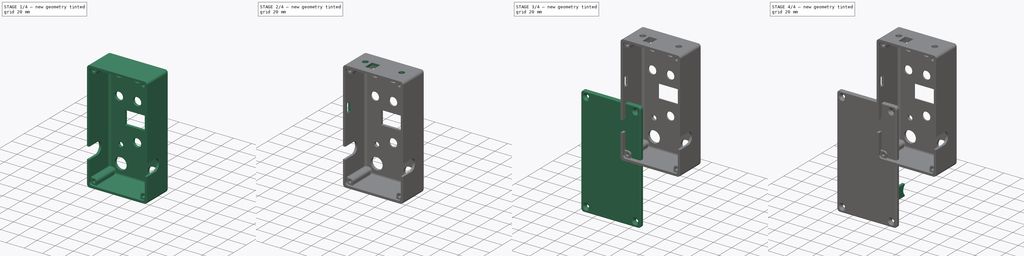
[diagram: build sequence overview — one tinted view per stage of 4, left to right]
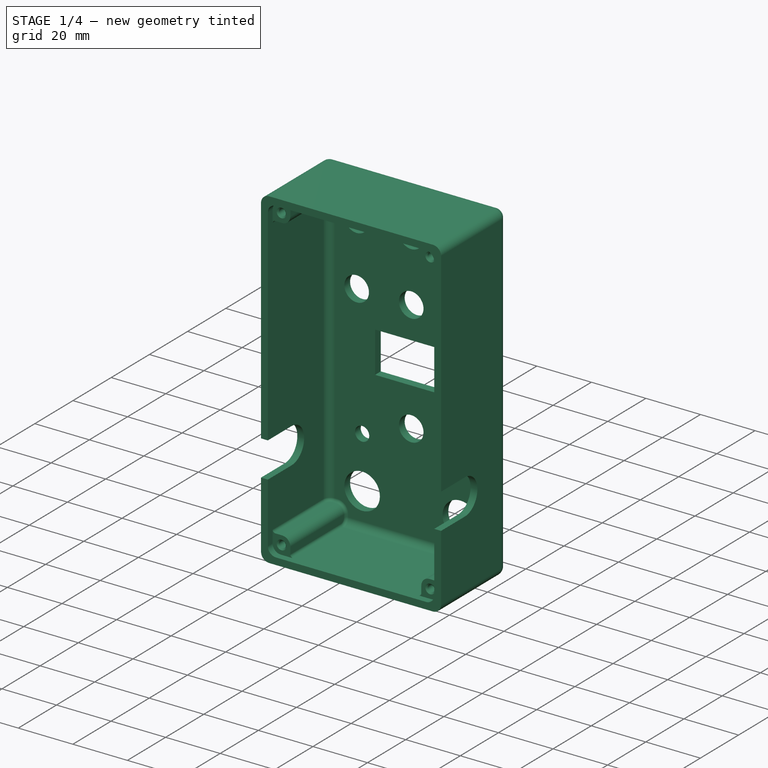
[diagram: stage 1 of 4 — iso view after this stage's code; geometry added in this stage tinted green]
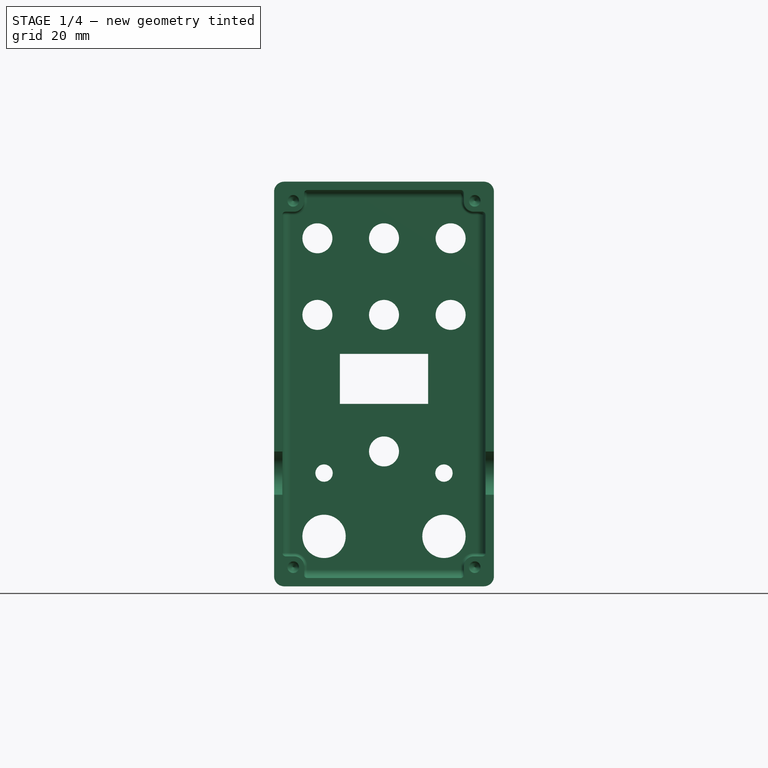
[diagram: stage 1 of 4 — front view after this stage's code; geometry added in this stage tinted green]
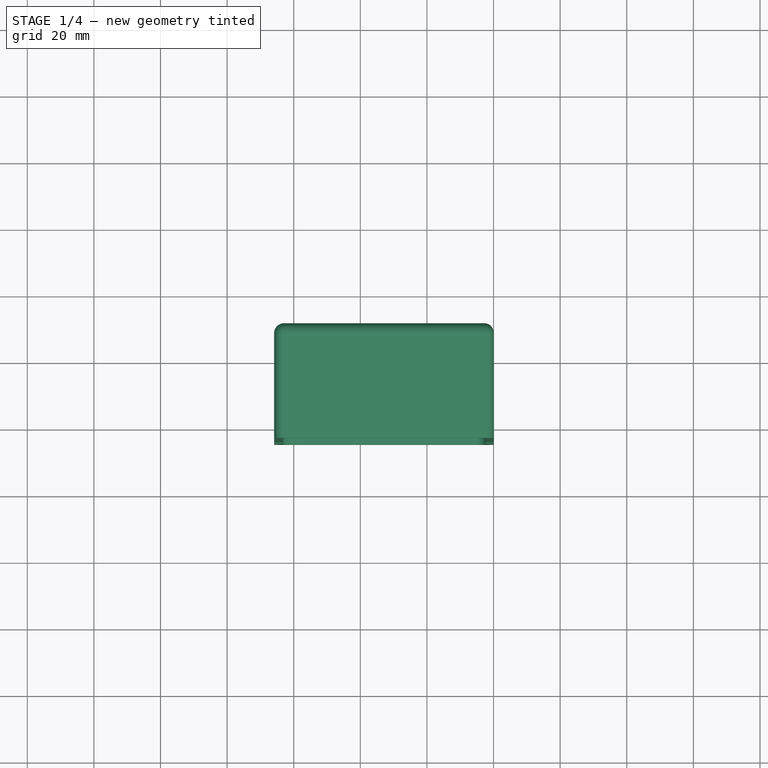
[diagram: stage 1 of 4 — top view after this stage's code; geometry added in this stage tinted green]
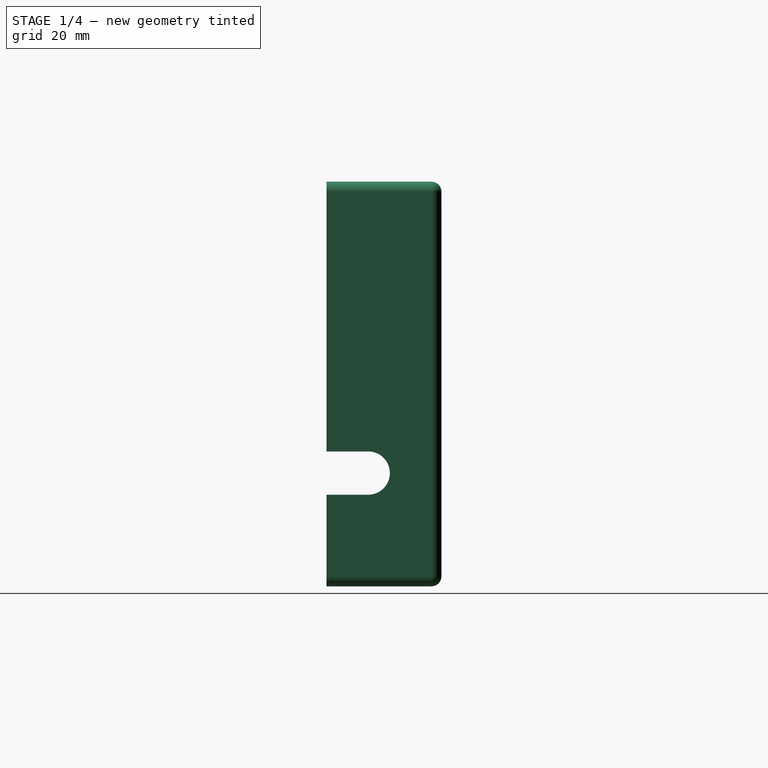
[diagram: stage 1 of 4 — right view after this stage's code; geometry added in this stage tinted green]
FCSTD DOCUMENT  (FreeCAD 2024.2R37240 (Git))
Label: daisy-enclosure
License: All rights reserved
LicenseURL: https://en.wikipedia.org/wiki/All_rights_reserved
objects: Sketcher::SketchObject×7, PartDesign::Pocket×6, Part::Feature×2, PartDesign::FeatureBase×2, PartDesign::Body×2, PartDesign::Chamfer×2, PartDesign::Pad×1, PartDesign::Plane×1, App::Part×1, PartDesign::Mirrored×1
note: 33 computed .brp shape members not serialized (recipe doc carries the construction recipe); baked Part::Feature solids carry a one-line shape summary decoded from their .brp

FEATURE [Part::Feature] Part__Feature  label="125B_Enclosure_Top"
  Placement = pos=(-12.892,11.25,63) rot=(0,0,1;3.14159rad)
  shape: bbox 66 x 34.5 x 121.5 mm, 99 faces (baked)
FEATURE [PartDesign::FeatureBase] BaseFeature
  BaseFeature = -> Part__Feature
  Suppressed = false
FEATURE [Sketcher::SketchObject] Sketch001  label="sketch-holes-front"
  AttachmentSupport = -> [BaseFeature]
  ExternalGeometry = -> [BaseFeature]
  FullyConstrained = true
  MapMode = 5
  Placement = pos=(0,30,0) rot=(0,0.707107,0.707107;3.14159rad)
  sketch-geometry (15):
    g0: Circle CenterX=12.8922 CenterY=41.5 CenterZ=0 NormalX=0 NormalY=0 NormalZ=1 AngleXU=0 Radius=4.5
    g1: Circle CenterX=12.8922 CenterY=18.5 CenterZ=0 NormalX=0 NormalY=0 NormalZ=1 AngleXU=0 Radius=4.5
    g2: Circle CenterX=-7.10776 CenterY=41.5 CenterZ=0 NormalX=0 NormalY=0 NormalZ=1 AngleXU=0 Radius=4.5
    g3: Circle CenterX=-7.10776 CenterY=18.5 CenterZ=0 NormalX=0 NormalY=0 NormalZ=1 AngleXU=0 Radius=4.5
    g4: Circle CenterX=32.8922 CenterY=41.5 CenterZ=0 NormalX=0 NormalY=0 NormalZ=1 AngleXU=0 Radius=4.5
    g5: Circle CenterX=32.8922 CenterY=18.5 CenterZ=0 NormalX=0 NormalY=0 NormalZ=1 AngleXU=0 Radius=4.5
    g6: LineSegment StartX=-0.357759 StartY=6.8 StartZ=0 EndX=-0.357759 EndY=-8.2 EndZ=0
    g7: LineSegment StartX=-0.357759 StartY=-8.2 StartZ=0 EndX=26.1422 EndY=-8.2 EndZ=0
    g8: LineSegment StartX=26.1422 StartY=-8.2 StartZ=0 EndX=26.1422 EndY=6.8 EndZ=0
    g9: LineSegment StartX=26.1422 StartY=6.8 StartZ=0 EndX=-0.357759 EndY=6.8 EndZ=0
    g10: Circle CenterX=12.8922 CenterY=-22.5 CenterZ=0 NormalX=0 NormalY=0 NormalZ=1 AngleXU=0 Radius=4.5
    g11: Circle CenterX=-5.10776 CenterY=-48 CenterZ=0 NormalX=0 NormalY=0 NormalZ=1 AngleXU=0 Radius=6.5
    g12: Circle CenterX=30.8922 CenterY=-48 CenterZ=0 NormalX=0 NormalY=0 NormalZ=1 AngleXU=0 Radius=6.5
    g13: Circle CenterX=-5.10776 CenterY=-29 CenterZ=0 NormalX=0 NormalY=0 NormalZ=1 AngleXU=0 Radius=2.6
    g14: Circle CenterX=30.8922 CenterY=-29 CenterZ=0 NormalX=0 NormalY=0 NormalZ=1 AngleXU=0 Radius=2.6
  constraints (45):
    c: Radius(g0) = 4.5
    c: Radius(g1) = 4.5
    c: Distance(g0,g-3) = 14
    c: Distance(g1,g-3) = 37
    c: Distance(g0,g-5) = 30
    c: Distance(g1,g-5) = 30
    c: Radius(g2) = 4.5
    c: Radius(g3) = 4.5
    c: Radius(g4) = 4.5
    c: Radius(g5) = 4.5
    c: Distance(g2,g-3) = 14
    c: Distance(g3,g-3) = 37
    c: DistanceX(g2,g0) = 20
    c: DistanceX(g3,g1) = 20
    c: Symmetric(g4,g2,g0)
    c: Symmetric(g5,g3,g1)
    c: Coincident(g6,g7)
    c: Coincident(g7,g8)
    c: Coincident(g8,g9)
    c: Coincident(g9,g6)
    c: Vertical(g6)
    c: Vertical(g8)
    c: Horizontal(g7)
    c: Horizontal(g9)
    c: Distance(g-3,g9) = 48.7
    c: Distance(g9,g7) = 15
    c: DistanceX(g9,g9) = 26.5
    c: Radius(g10) = 4.5
    c: Distance(g10,g-5) = 30
    c: Distance(g10,g-4) = 37.5
    c: Radius(g11) = 6.5
    c: Radius(g12) = 6.5
    c: Radius(g13) = 2.6
    c: Radius(g14) = 2.6
    c: Distance(g3,g-5) = 10
    c: Distance(g13,g-5) = 12
    c: Distance(g14,g-6) = 12
    c: Distance(g12,g-6) = 12
    c: Distance(g11,g-5) = 12
    c: Distance(g11,g-4) = 12
    c: Distance(g12,g-4) = 12
    c: Distance(g13,g-4) = 31
    c: Distance(g14,g-4) = 31
    c: Distance(g-5,g6) = 16.75
    c: Distance(g-6,g8) = 16.75
FEATURE [PartDesign::Pocket] Pocket  label="holes-front"
  BaseFeature = -> BaseFeature
  Direction = (0,-1,2e-16)
  Length = 5
  Length2 = 5
  Profile = -> Sketch001
  ReferenceAxis = -> Sketch001 [N_Axis]
  Refine = true
  Suppressed = false
  Type = 0
FEATURE [Sketcher::SketchObject] Sketch002  label="sketch-holes-side-jacks"
  AttachmentSupport = -> [Pocket]
  ExternalGeometry = -> [Pocket]
  FullyConstrained = true
  MapMode = 5
  Placement = pos=(-45.8922,0,5e-15) rot=(0.57735,-0.57735,-0.57735;2.0944rad)
  sketch-geometry (4):
    g0: ArcOfCircle CenterX=-8 CenterY=-29 CenterZ=0 NormalX=0 NormalY=0 NormalZ=1 AngleXU=0 Radius=6.5 StartAngle=1.5708 EndAngle=4.71239
    g1: LineSegment StartX=4.5 StartY=-22.5 StartZ=0 EndX=-8 EndY=-22.5 EndZ=0
    g2: LineSegment StartX=-8 StartY=-35.5 StartZ=0 EndX=4.5 EndY=-35.5 EndZ=0
    g3: LineSegment StartX=4.5 StartY=-35.5 StartZ=0 EndX=4.5 EndY=-22.5 EndZ=0
  constraints (14):
    c: Radius(g0) = 6.5
    c: Distance(g0,g-3) = 19
    c: Distance(g0,g-4) = 31
    c: Coincident(g2,g3)
    c: Coincident(g3,g1)
    c: Horizontal(g1)
    c: Horizontal(g2)
    c: Vertical(g3)
    c: PointOnObject(g1,g-5)
    c: Coincident(g0,g1)
    c: Coincident(g0,g2)
    c: Distance(g-7,g-4) = 3
    c: Vertical(g0,g0)
    c: Vertical(g0,g0)
FEATURE [PartDesign::Pocket] Pocket001  label="holes-side-jacks"
  BaseFeature = -> Pocket
  Direction = (1,0,0)
  Length = 5
  Length2 = 5
  Profile = -> Sketch002
  ReferenceAxis = -> Sketch002 [N_Axis]
  Refine = true
  Suppressed = false
  Type = 1
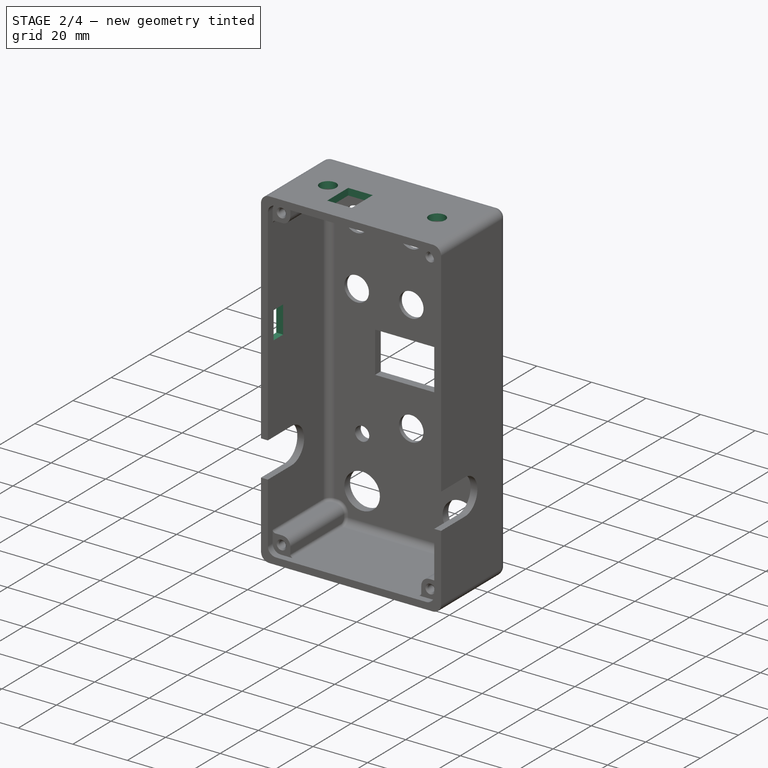
[diagram: stage 2 of 4 — iso view after this stage's code; geometry added in this stage tinted green]
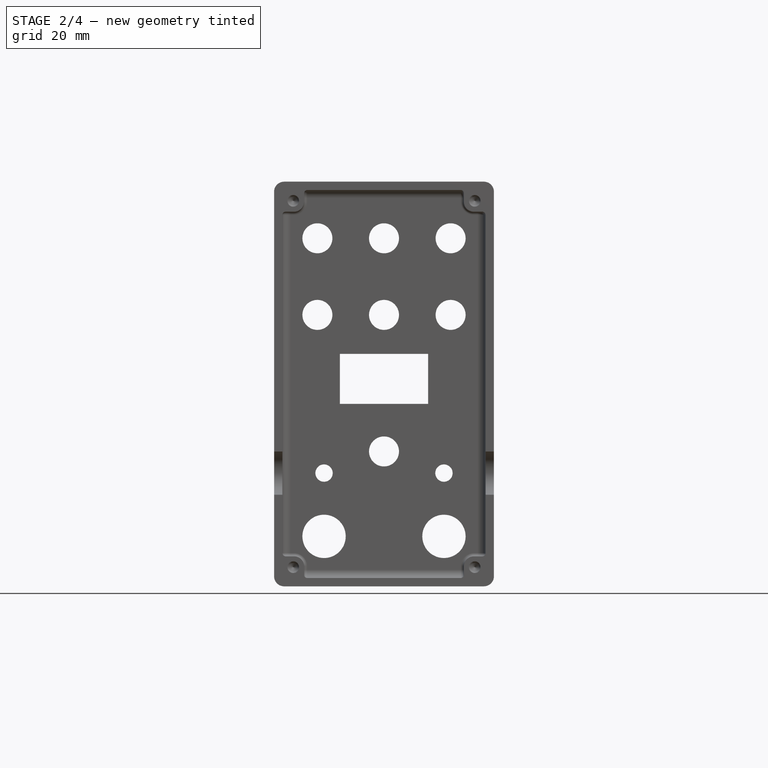
[diagram: stage 2 of 4 — front view after this stage's code; geometry added in this stage tinted green]
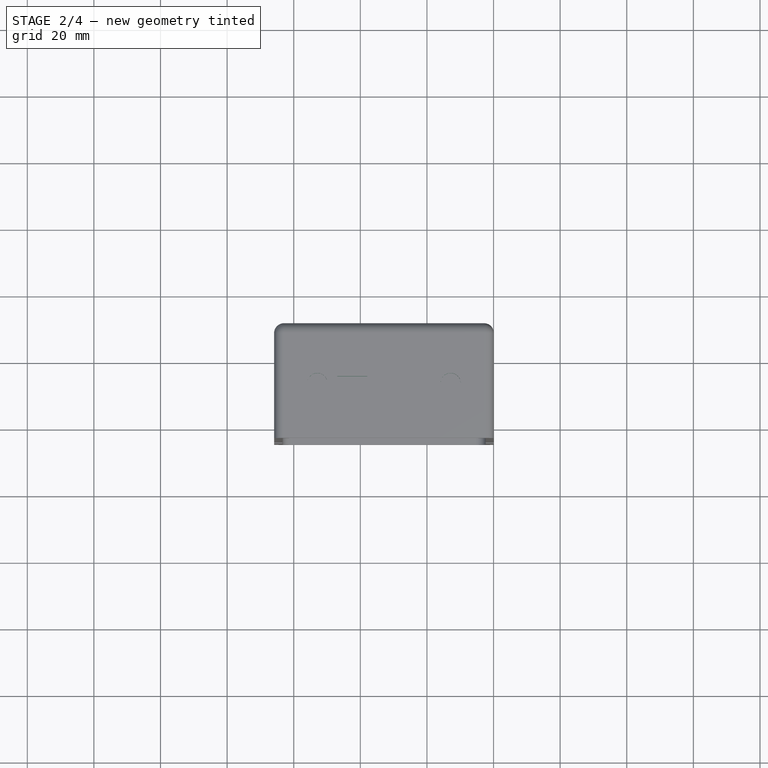
[diagram: stage 2 of 4 — top view after this stage's code; geometry added in this stage tinted green]
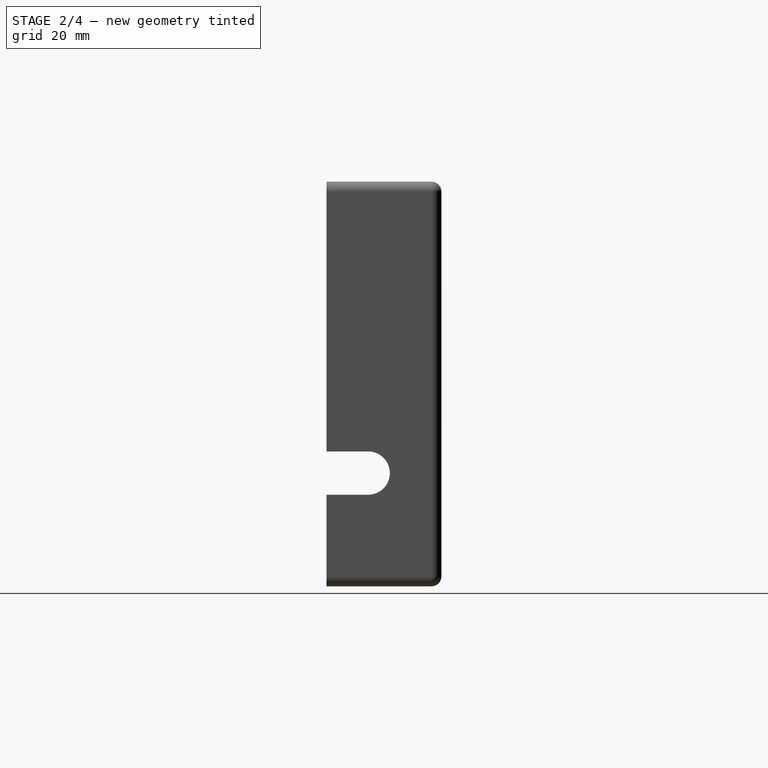
[diagram: stage 2 of 4 — right view after this stage's code; geometry added in this stage tinted green]
FEATURE [Sketcher::SketchObject] Sketch003  label="sketch-holes-top"
  AttachmentSupport = -> [Pocket001]
  ExternalGeometry = -> [Pocket001]
  FullyConstrained = true
  MapMode = 5
  Placement = pos=(0,0,58.5) rot=(0,0,1;0rad)
  sketch-geometry (6):
    g0: Circle CenterX=7.10776 CenterY=12 CenterZ=0 NormalX=0 NormalY=0 NormalZ=1 AngleXU=0 Radius=3
    g1: LineSegment StartX=-26.8922 StartY=14 StartZ=0 EndX=-26.8922 EndY=3 EndZ=0
    g2: LineSegment StartX=-26.8922 StartY=3 StartZ=0 EndX=-17.8922 EndY=3 EndZ=0
    g3: LineSegment StartX=-17.8922 StartY=3 StartZ=0 EndX=-17.8922 EndY=14 EndZ=0
    g4: LineSegment StartX=-17.8922 StartY=14 StartZ=0 EndX=-26.8922 EndY=14 EndZ=0
    g5: Circle CenterX=-32.8922 CenterY=12 CenterZ=0 NormalX=0 NormalY=0 NormalZ=1 AngleXU=0 Radius=3
  constraints (18):
    c: Radius(g0) = 3
    c: Distance(g0,g-3) = 15
    c: Distance(g0,g-5) = 10
    c: Coincident(g1,g2)
    c: Coincident(g2,g3)
    c: Coincident(g3,g4)
    c: Coincident(g4,g1)
    c: Vertical(g1)
    c: Vertical(g3)
    c: Horizontal(g2)
    c: Horizontal(g4)
    c: DistanceX(g4,g4) = 9
    c: DistanceY(g3,g3) = 11
    c: Distance(g-4,g1) = 16
    c: Radius(g5) = 3
    c: Distance(g5,g-3) = 15
    c: Distance(g5,g-4) = 10
    c: Distance(g-3,g4) = 13
FEATURE [PartDesign::Pocket] Pocket002  label="holes-top"
  BaseFeature = -> Pocket001
  Direction = (0,0,-1)
  Length = 5
  Length2 = 5
  Profile = -> Sketch003
  ReferenceAxis = -> Sketch003 [N_Axis]
  Refine = true
  Suppressed = false
  Type = 0
FEATURE [PartDesign::Body] Body002  label="Box-Bottom"
  BaseFeature = -> Part__Feature001
  Group = -> [BaseFeature001,Sketch,Pad,DatumPlane,Sketch007,Pocket004,Mirrored]
  Origin = -> Origin003
  Placement = pos=(60,-1.55272,68.5968) rot=(0,0,1;0rad)
  Tip = -> Mirrored
FEATURE [Sketcher::SketchObject] Sketch008  label="sketch-hole-usb"
  AttachmentSupport = -> [Pocket002]
  ExternalGeometry = -> [Pocket002]
  FullyConstrained = true
  MapMode = 5
  Placement = pos=(-45.8922,0,5e-15) rot=(0.57735,-0.57735,-0.57735;2.0944rad)
  sketch-geometry (4):
    g0: LineSegment StartX=-3.5 StartY=19.5 StartZ=0 EndX=-3.5 EndY=9.5 EndZ=0
    g1: LineSegment StartX=-3.5 StartY=9.5 StartZ=0 EndX=1.5 EndY=9.5 EndZ=0
    g2: LineSegment StartX=1.5 StartY=9.5 StartZ=0 EndX=1.5 EndY=19.5 EndZ=0
    g3: LineSegment StartX=1.5 StartY=19.5 StartZ=0 EndX=-3.5 EndY=19.5 EndZ=0
  constraints (12):
    c: Coincident(g0,g1)
    c: Coincident(g1,g2)
    c: Coincident(g2,g3)
    c: Coincident(g3,g0)
    c: Vertical(g0)
    c: Vertical(g2)
    c: Horizontal(g1)
    c: Horizontal(g3)
    c: DistanceY(g0,g0) = 10
    c: DistanceX(g3,g3) = 5
    c: Distance(g-3,g2) = 3
    c: Distance(g-4,g3) = 36
FEATURE [PartDesign::Pocket] Pocket005  label="hole-usb"
  BaseFeature = -> Pocket002
  Direction = (1,0,0)
  Length = 5
  Length2 = 5
  Profile = -> Sketch008
  ReferenceAxis = -> Sketch008 [N_Axis]
  Refine = true
  Suppressed = false
  Type = 0
FEATURE [Sketcher::SketchObject] Sketch010
  FullyConstrained = false
  MapMode = 5
  Placement = pos=(0,30,0) rot=(0,0.707107,0.707107;3.14159rad)
  sketch-geometry (7):
    g0: Circle CenterX=12.8922 CenterY=-22.5 CenterZ=0 NormalX=0 NormalY=0 NormalZ=1 AngleXU=0 Radius=6.5
    g1: Circle CenterX=-7.10776 CenterY=41.5 CenterZ=0 NormalX=0 NormalY=0 NormalZ=1 AngleXU=0 Radius=6.5
    g2: Circle CenterX=12.8922 CenterY=41.5 CenterZ=0 NormalX=0 NormalY=0 NormalZ=1 AngleXU=0 Radius=6.5
    g3: Circle CenterX=32.8922 CenterY=41.5 CenterZ=0 NormalX=0 NormalY=0 NormalZ=1 AngleXU=0 Radius=6.5
    g4: Circle CenterX=-7.10776 CenterY=18.5 CenterZ=0 NormalX=0 NormalY=0 NormalZ=1 AngleXU=0 Radius=6.5
    g5: Circle CenterX=12.8922 CenterY=18.5 CenterZ=0 NormalX=0 NormalY=0 NormalZ=1 AngleXU=0 Radius=6.5
    g6: Circle CenterX=32.8922 CenterY=18.5 CenterZ=0 NormalX=0 NormalY=0 NormalZ=1 AngleXU=0 Radius=6.5
  constraints (7):
    c: Radius(g1) = 6.5
    c: Equal(g2,g1)
    c: Equal(g3,g1)
    c: Equal(g4,g1)
    c: Equal(g5,g1)
    c: Equal(g6,g1)
    c: Equal(g0,g1)
FEATURE [PartDesign::Pocket] Pocket006
  BaseFeature = -> Pocket005
  Direction = (0,-1,2e-16)
  Length = 1.5
  Length2 = 5
  Profile = -> Sketch010
  ReferenceAxis = -> Sketch010 [N_Axis]
  Refine = true
  Suppressed = false
  Type = 0
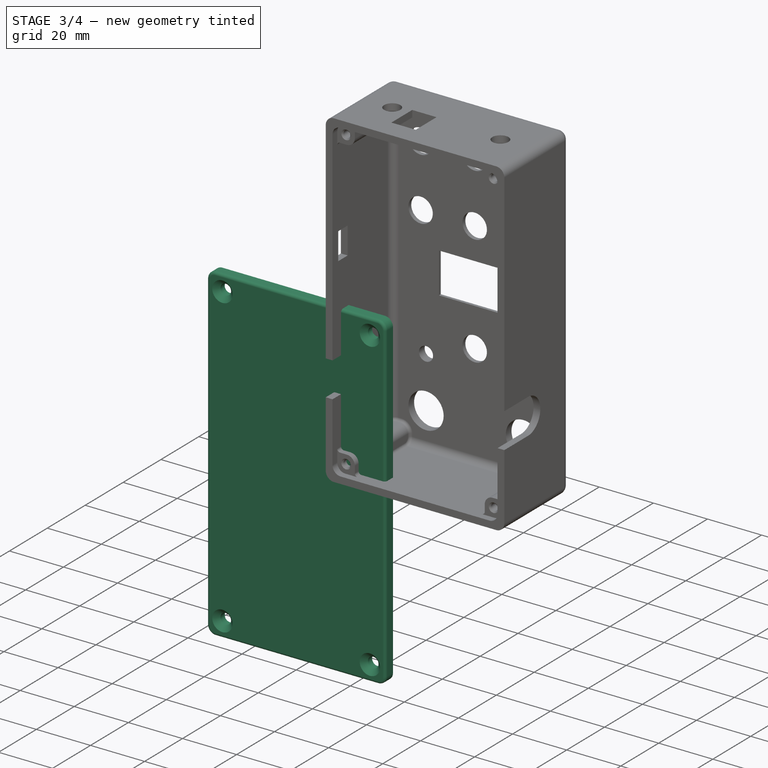
[diagram: stage 3 of 4 — iso view after this stage's code; geometry added in this stage tinted green]
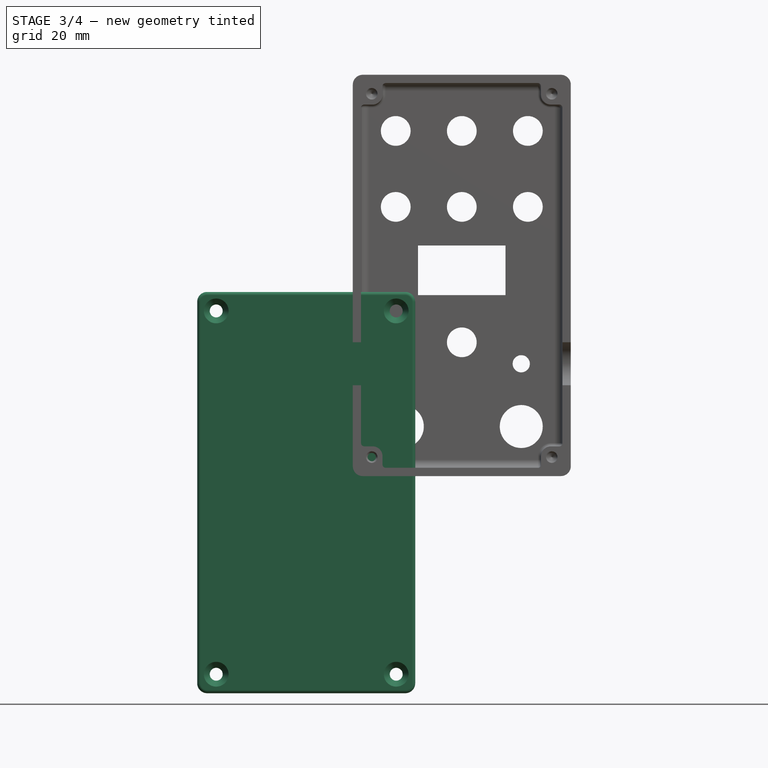
[diagram: stage 3 of 4 — front view after this stage's code; geometry added in this stage tinted green]
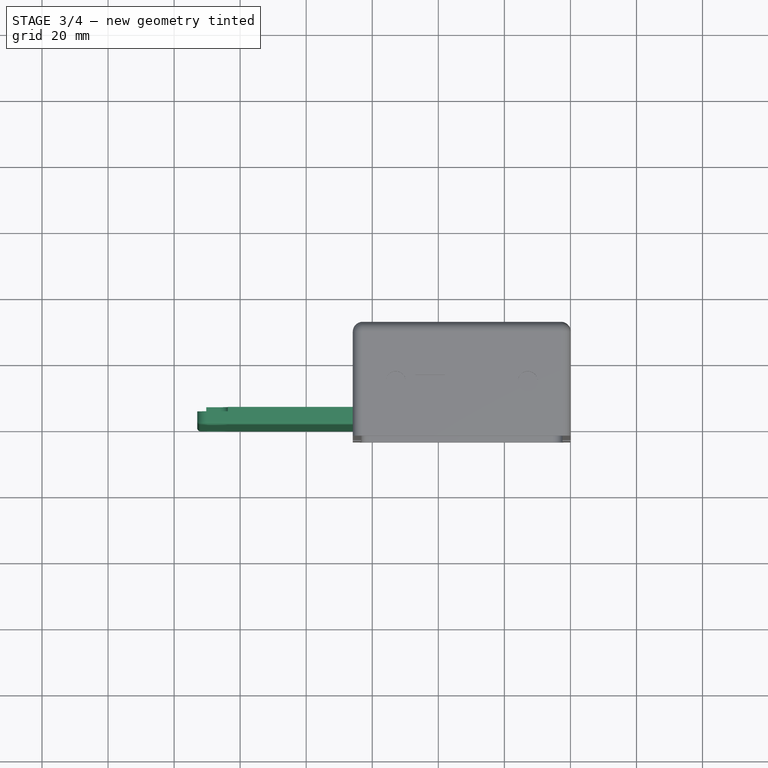
[diagram: stage 3 of 4 — top view after this stage's code; geometry added in this stage tinted green]
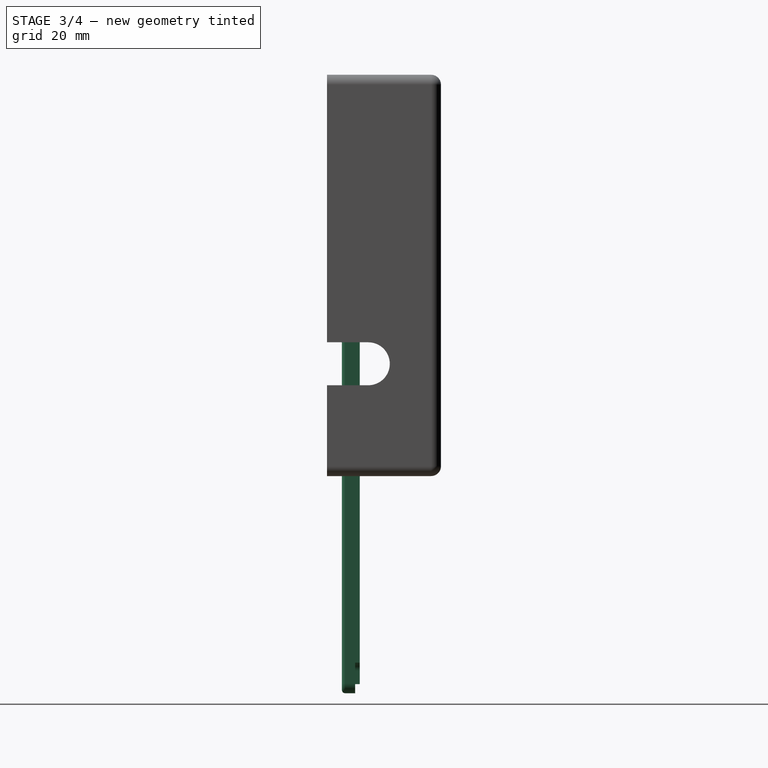
[diagram: stage 3 of 4 — right view after this stage's code; geometry added in this stage tinted green]
FEATURE [Part::Feature] Part__Feature001  label="125B_Enclosure_Bottom"
  shape: bbox 66.49 x 5.4 x 122 mm, 68 faces (baked)
FEATURE [PartDesign::FeatureBase] BaseFeature001
  BaseFeature = -> Part__Feature001
  Suppressed = false
FEATURE [PartDesign::Chamfer] Chamfer
  Angle = 45
  Base = -> Pocket006 [Edge274,Edge267,Edge270,Edge272]
  BaseFeature = -> Pocket006
  ChamferType = 0
  FlipDirection = false
  Refine = true
  Size = 2
  Size2 = 1
  SupportTransform = false
  Suppressed = false
  UseAllEdges = false
FEATURE [PartDesign::Chamfer] Chamfer001
  Angle = 45
  Base = -> Chamfer [Edge96,Edge95,Edge93,Edge94,Edge189,Edge187,Edge186,Edge81,Edge80,Edge79,Edge82]
  BaseFeature = -> Chamfer
  ChamferType = 0
  FlipDirection = false
  Refine = true
  Size = 1
  Size2 = 1
  SupportTransform = false
  Suppressed = false
  UseAllEdges = false
FEATURE [PartDesign::Body] Body  label="Box-Top"
  BaseFeature = -> Part__Feature
  Group = -> [BaseFeature,Sketch001,Pocket,Sketch002,Pocket001,Sketch003,Pocket002,Sketch008,Pocket005,Sketch010,Pocket006,Chamfer,Chamfer001]
  Origin = -> Origin001
  Placement = pos=(12.9288,-18.3006,2.00186) rot=(0,0,1;0rad)
  Tip = -> Chamfer001
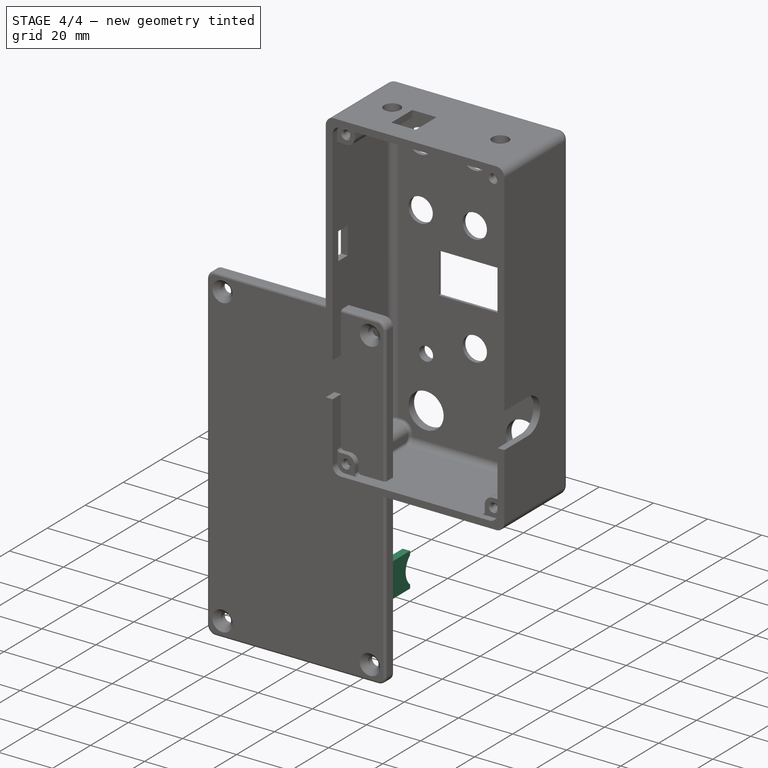
[diagram: stage 4 of 4 — iso view after this stage's code; geometry added in this stage tinted green]
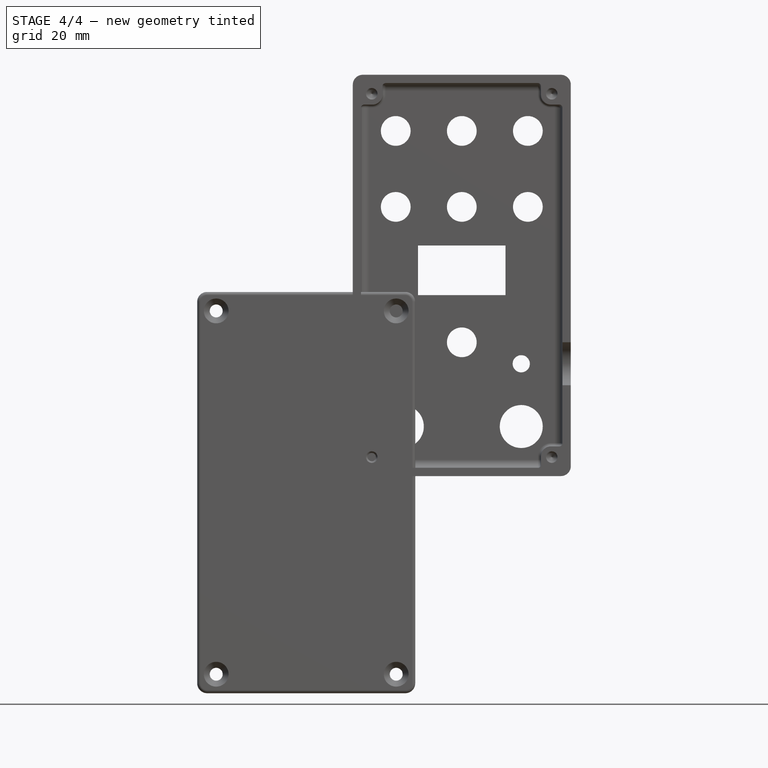
[diagram: stage 4 of 4 — front view after this stage's code; geometry added in this stage tinted green]
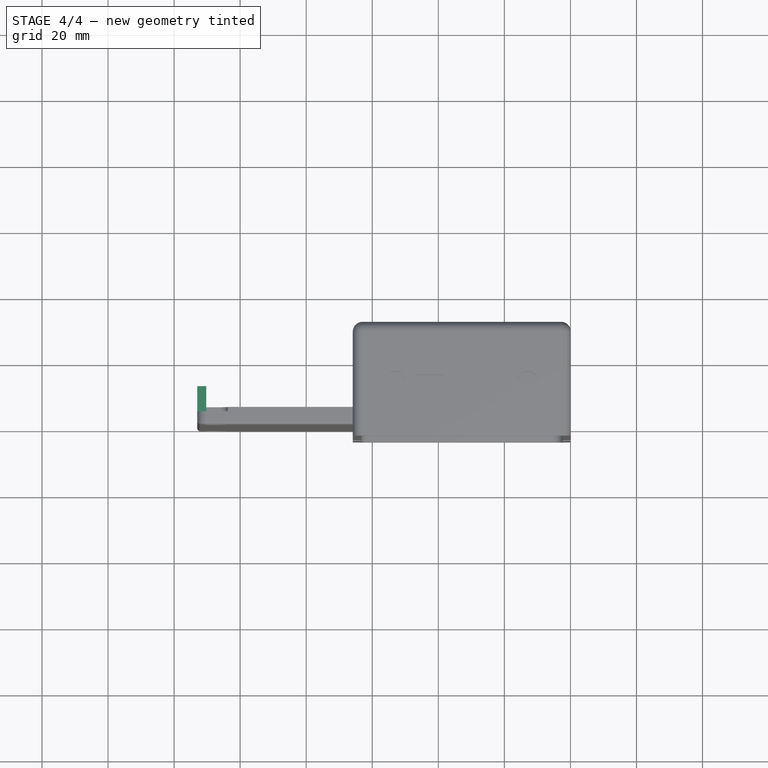
[diagram: stage 4 of 4 — top view after this stage's code; geometry added in this stage tinted green]
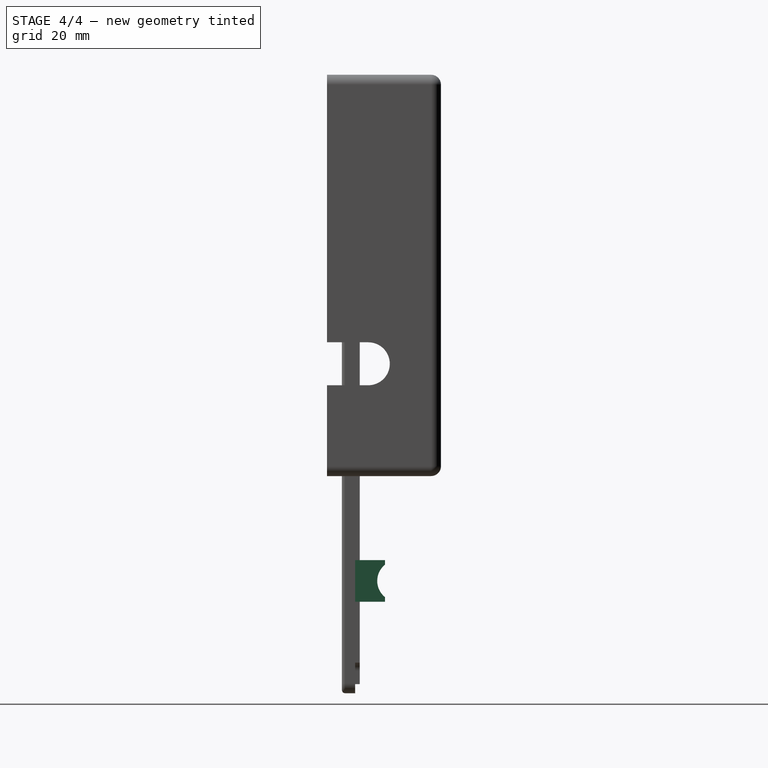
[diagram: stage 4 of 4 — right view after this stage's code; geometry added in this stage tinted green]
FEATURE [Sketcher::SketchObject] Sketch  label="sketch-jack-bottom"
  AttachmentSupport = -> [BaseFeature001]
  ExternalGeometry = -> [BaseFeature001]
  FullyConstrained = true
  MapMode = 5
  Placement = pos=(-93,0,1.02e-14) rot=(0.57735,-0.57735,-0.57735;2.0944rad)
  sketch-geometry (4):
    g0: ArcOfCircle CenterX=-17 CenterY=-94.75 CenterZ=0 NormalX=0 NormalY=0 NormalZ=1 AngleXU=0 Radius=6.3 StartAngle=4.71239 EndAngle=7.85398
    g1: LineSegment StartX=-17 StartY=-101.05 StartZ=0 EndX=-4 EndY=-101.05 EndZ=0
    g2: LineSegment StartX=-4 StartY=-101.05 StartZ=0 EndX=-4 EndY=-88.45 EndZ=0
    g3: LineSegment StartX=-4 StartY=-88.45 StartZ=0 EndX=-17 EndY=-88.45 EndZ=0
  constraints (13):
    c: Radius(g0) = 6.3
    c: Coincident(g1,g2)
    c: Coincident(g2,g3)
    c: Vertical(g2)
    c: Horizontal(g1)
    c: Horizontal(g3)
    c: Distance(g0,g-3) = 13
    c: Distance(g0,g-4) = 31
    c: PointOnObject(g2,g-3)
    c: Coincident(g3,g0)
    c: Coincident(g1,g0)
    c: Vertical(g0,g0)
    c: Vertical(g0,g0)
FEATURE [PartDesign::Pad] Pad  label="Jack-Bottom"
  BaseFeature = -> BaseFeature001
  Direction = (-1,0,0)
  Length = 10
  Length2 = 10
  Profile = -> Sketch
  ReferenceAxis = -> Sketch [N_Axis]
  Refine = true
  Reversed = true
  Suppressed = false
  Type = 3
  UpToFace = -> BaseFeature001 [Face25]
FEATURE [PartDesign::Plane] DatumPlane
  AttachmentOffset = pos=(0,0,-60) rot=(0,0,1;0rad)
  Length = 60
  MapMode = 2
  Placement = pos=(-60,0,0) rot=(0.57735,0.57735,0.57735;2.0944rad)
  ResizeMode = 0
  Width = 60
FEATURE [Sketcher::SketchObject] Sketch007
  AttachmentSupport = -> [Pad]
  ExternalGeometry = -> [Pad]
  FullyConstrained = false
  MapMode = 5
  Placement = pos=(-93,6.6e-14,0) rot=(0.57735,-0.57735,-0.57735;2.0944rad)
  sketch-geometry (5):
    g0: LineSegment StartX=-20.9591 StartY=-101.05 StartZ=0 EndX=-13.0409 EndY=-101.05 EndZ=0
    g1: LineSegment StartX=-13.0409 StartY=-101.05 StartZ=0 EndX=-13.0409 EndY=-88.45 EndZ=0
    g2: LineSegment StartX=-13.0409 StartY=-88.45 StartZ=0 EndX=-20.9591 EndY=-88.45 EndZ=0
    g3: LineSegment StartX=-20.9591 StartY=-88.45 StartZ=0 EndX=-20.9591 EndY=-101.05 EndZ=0
    g4: GeomPoint X=-17 Y=-94.75 Z=0
  constraints (11):
    c: Coincident(g0,g1)
    c: Coincident(g1,g2)
    c: Coincident(g2,g3)
    c: Coincident(g3,g0)
    c: Horizontal(g0)
    c: Horizontal(g2)
    c: Vertical(g1)
    c: Vertical(g3)
    c: Symmetric(g2,g0,g4)
    c: Coincident(g4,g-3)
    c: PointOnObject(g0,g-5)
FEATURE [PartDesign::Pocket] Pocket004
  BaseFeature = -> Pad
  Direction = (1,0,0)
  Length = 5
  Length2 = 5
  Profile = -> Sketch007
  ReferenceAxis = -> Sketch007 [N_Axis]
  Refine = true
  Suppressed = false
  Type = 0
FEATURE [App::Part] Part
  Group = -> [Part__Feature001,Part__Feature]
  Origin = -> Origin
FEATURE [PartDesign::Mirrored] Mirrored
  BaseFeature = -> Pocket004
  MirrorPlane = -> DatumPlane
  Originals = -> [Pad,Pocket004]
  Refine = true
  Suppressed = false
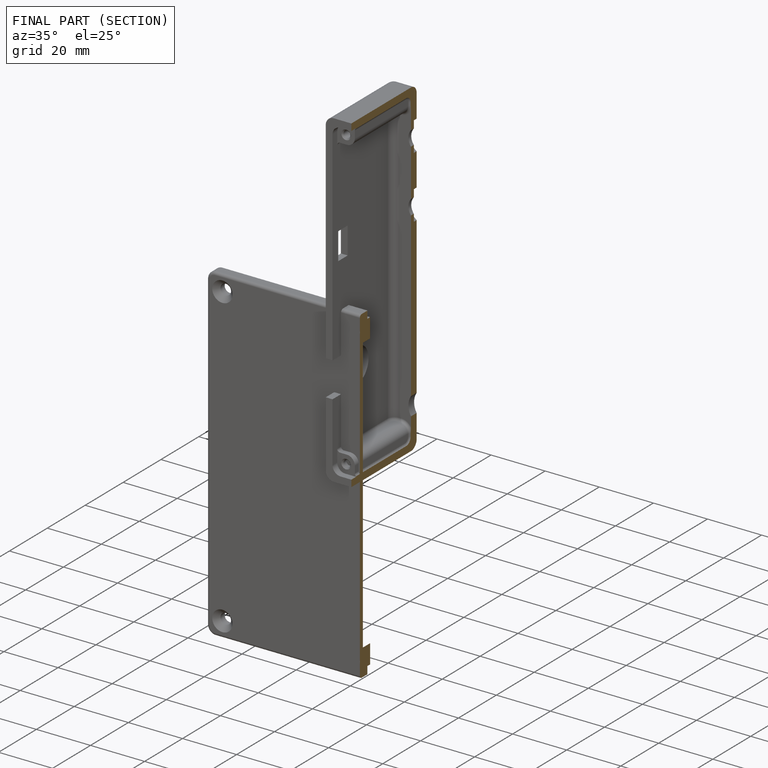
[diagram: finished part — half-section view (interior)]
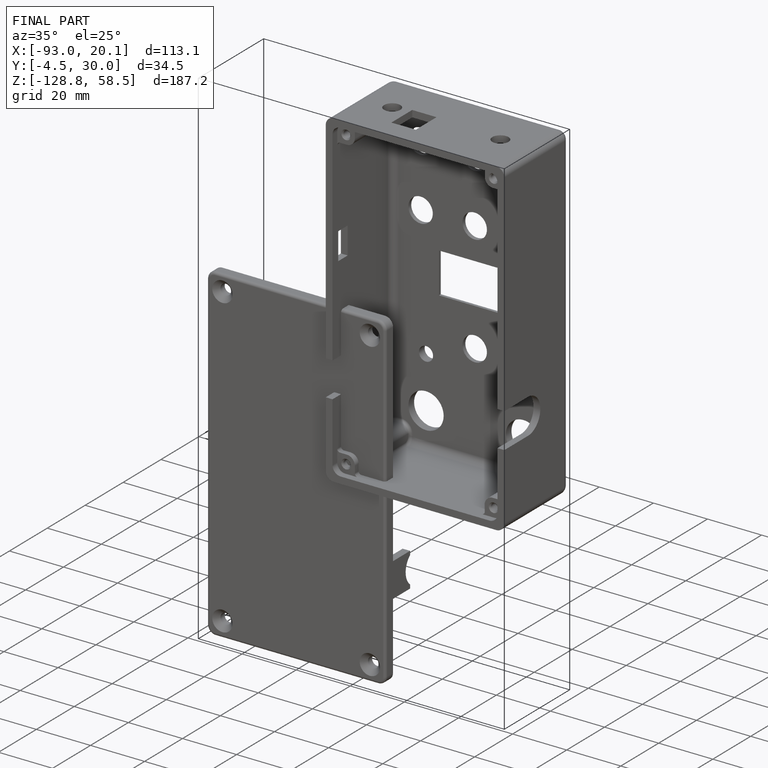
[diagram: finished part — iso view with bounding-box wireframe]
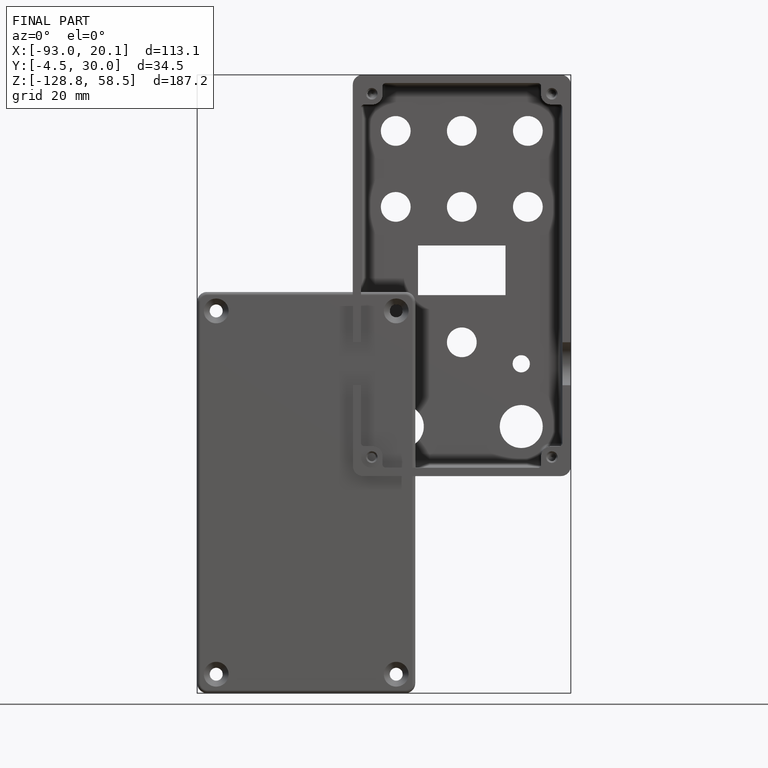
[diagram: finished part — front view with bounding-box wireframe]
